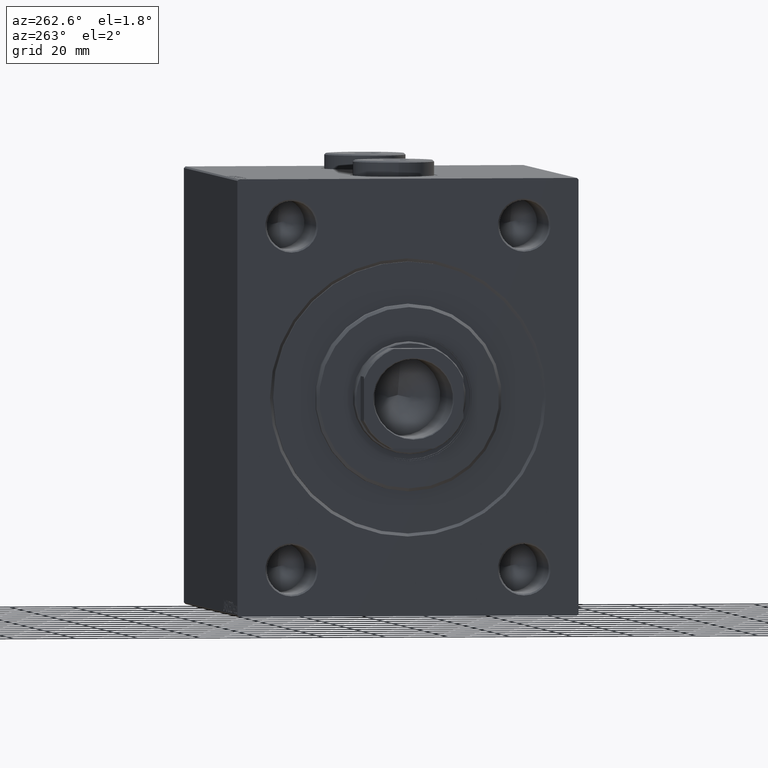
[diagram: clean part render]
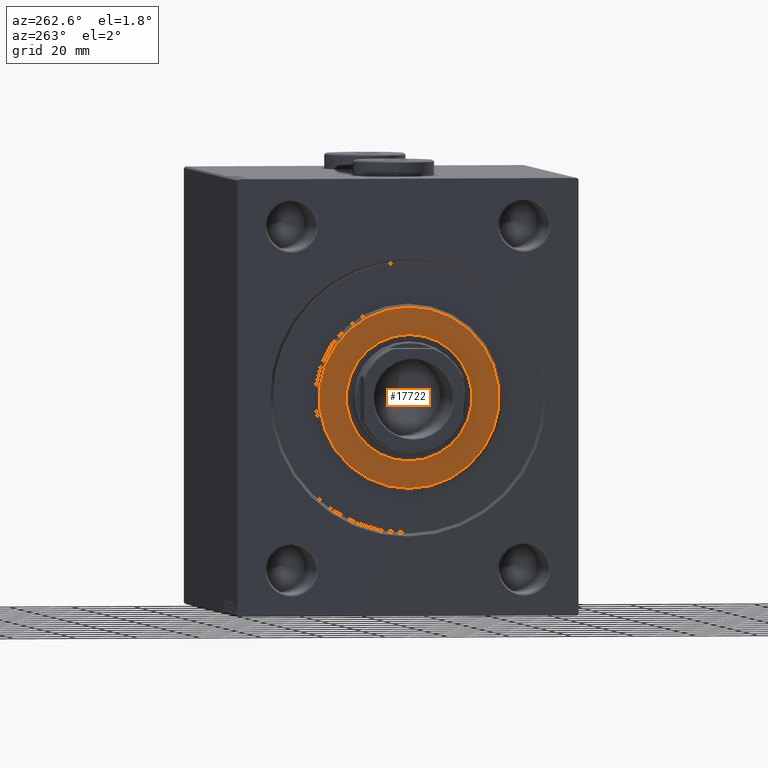
[diagram: same view with one face highlighted and labeled with its STEP entity id]
A machine part, auxiliary view. The second image highlights one B-rep face of the part: STEP entity #17722.
In plain terms, the highlighted planar face has unit normal (-1, 0, 0).
Its self-contained STEP definition (entity closure, byte-faithful):
#139 = CIRCLE ( 'NONE', #26742, 20.25000000000000000 ) ;
#6809 = DIRECTION ( 'NONE',  ( 1.000000000000000000, -0.000000000000000000, 0.000000000000000000 ) ) ;
#8043 = AXIS2_PLACEMENT_3D ( 'NONE', #37770, #6809, #13041 ) ;
#8960 = VERTEX_POINT ( 'NONE', #38381 ) ;
#9116 = VERTEX_POINT ( 'NONE', #11786 ) ;
#9437 = CARTESIAN_POINT ( 'NONE',  ( 3.000000000000000000, 0.000000000000000000, 0.000000000000000000 ) ) ;
#10493 = FACE_OUTER_BOUND ( 'NONE', #27955, .T. ) ;
#11786 = CARTESIAN_POINT ( 'NONE',  ( 3.000000000000000000, 0.000000000000000000, -20.25000000000000000 ) ) ;
#11984 = VERTEX_POINT ( 'NONE', #20845 ) ;
#13041 = DIRECTION ( 'NONE',  ( 0.000000000000000000, 0.000000000000000000, -1.000000000000000000 ) ) ;
#15739 = DIRECTION ( 'NONE',  ( 0.000000000000000000, 0.000000000000000000, -1.000000000000000000 ) ) ;
#16929 = EDGE_CURVE ( 'NONE', #41368, #11984, #28645, .T. ) ;
#17722 = ADVANCED_FACE ( 'NONE', ( #10493, #23675 ), #37993, .T. ) ;
#18847 = CIRCLE ( 'NONE', #24746, 20.25000000000000000 ) ;
#20596 = DIRECTION ( 'NONE',  ( 0.000000000000000000, 0.000000000000000000, -1.000000000000000000 ) ) ;
#20845 = CARTESIAN_POINT ( 'NONE',  ( 3.000000000000000000, 0.000000000000000000, 28.99999999999999289 ) ) ;
#23388 = DIRECTION ( 'NONE',  ( 1.000000000000000000, -0.000000000000000000, 0.000000000000000000 ) ) ;
#23675 = FACE_BOUND ( 'NONE', #32566, .T. ) ;
#24473 = DIRECTION ( 'NONE',  ( 1.000000000000000000, 0.000000000000000000, 0.000000000000000000 ) ) ;
#24746 = AXIS2_PLACEMENT_3D ( 'NONE', #44609, #39990, #15739 ) ;
#26742 = AXIS2_PLACEMENT_3D ( 'NONE', #44824, #24473, #38573 ) ;
#27955 = EDGE_LOOP ( 'NONE', ( #35684, #40764 ) ) ;
#28645 = CIRCLE ( 'NONE', #34564, 28.99999999999999289 ) ;
#30698 = DIRECTION ( 'NONE',  ( 0.000000000000000000, 0.000000000000000000, -1.000000000000000000 ) ) ;
#30919 = DIRECTION ( 'NONE',  ( 1.000000000000000000, -0.000000000000000000, 0.000000000000000000 ) ) ;
#31024 = CARTESIAN_POINT ( 'NONE',  ( 3.000000000000000000, 0.000000000000000000, 0.000000000000000000 ) ) ;
#31888 = CIRCLE ( 'NONE', #40753, 28.99999999999999289 ) ;
#32566 = EDGE_LOOP ( 'NONE', ( #43528, #36101 ) ) ;
#34099 = EDGE_CURVE ( 'NONE', #8960, #9116, #139, .T. ) ;
#34384 = EDGE_CURVE ( 'NONE', #11984, #41368, #31888, .T. ) ;
#34564 = AXIS2_PLACEMENT_3D ( 'NONE', #31024, #23388, #20596 ) ;
#35684 = ORIENTED_EDGE ( 'NONE', *, *, #34384, .T. ) ;
#36101 = ORIENTED_EDGE ( 'NONE', *, *, #34099, .F. ) ;
#37326 = CARTESIAN_POINT ( 'NONE',  ( 3.000000000000000000, 3.612708057484691604E-15, -28.99999999999999289 ) ) ;
#37770 = CARTESIAN_POINT ( 'NONE',  ( 3.000000000000000000, 0.000000000000000000, 0.000000000000000000 ) ) ;
#37993 = PLANE ( 'NONE',  #8043 ) ;
#38381 = CARTESIAN_POINT ( 'NONE',  ( 3.000000000000000000, 2.479909768273390300E-15, 20.25000000000000000 ) ) ;
#38573 = DIRECTION ( 'NONE',  ( 0.000000000000000000, 0.000000000000000000, -1.000000000000000000 ) ) ;
#39990 = DIRECTION ( 'NONE',  ( 1.000000000000000000, 0.000000000000000000, 0.000000000000000000 ) ) ;
#40753 = AXIS2_PLACEMENT_3D ( 'NONE', #9437, #30919, #30698 ) ;
#40764 = ORIENTED_EDGE ( 'NONE', *, *, #16929, .T. ) ;
#41368 = VERTEX_POINT ( 'NONE', #37326 ) ;
#43317 = EDGE_CURVE ( 'NONE', #9116, #8960, #18847, .T. ) ;
#43528 = ORIENTED_EDGE ( 'NONE', *, *, #43317, .F. ) ;
#44609 = CARTESIAN_POINT ( 'NONE',  ( 3.000000000000000000, 0.000000000000000000, 0.000000000000000000 ) ) ;
#44824 = CARTESIAN_POINT ( 'NONE',  ( 3.000000000000000000, 0.000000000000000000, 0.000000000000000000 ) ) ;